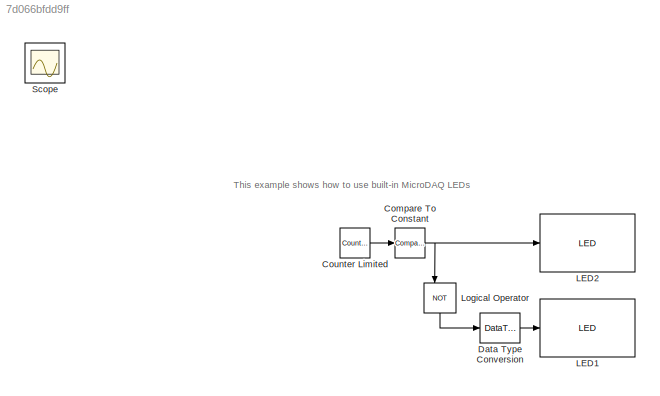
MODEL slx_7d066bfdd9ff
KIND model
CONFIG AbsTol = auto
CONFIG EnableMultiTasking = off
CONFIG FixedStep = 0.1
CONFIG MaxStep = auto
CONFIG MinStep = auto
CONFIG RelTol = 1e-3
CONFIG SampleTimeConstraint = Unconstrained
CONFIG SolverName = FixedStepDiscrete
CONFIG StartTime = 0.0
CONFIG StopTime = 10.0
BLOCK [Reference] Compare To Constant  REF=simulink/Logic and Bit
Operations/Compare
To Constant
  SourceBlock = simulink/Logic and Bit\nOperations/Compare\nTo Constant
  SourceType = Compare To Constant
BLOCK [Reference] Counter Limited  REF=simulink/Sources/Counter
Limited
  AttributesFormatString = Upper limit: %<uplimit>
  SourceBlock = simulink/Sources/Counter\nLimited
  SourceType = Counter Limited
BLOCK [DataTypeConversion] Data Type Conversion
  RndMeth = Floor
  SaturateOnIntegerOverflow = off
BLOCK [Reference] LED1  REF=microdaq_lib/Utilities/LED  (lib defined in slx_912f07ce28e3)
  SourceBlock = microdaq_lib/Utilities/LED
  SourceProductName = MicroDAQ
  SourceType = LED
BLOCK [Reference] LED2  REF=microdaq_lib/Utilities/LED  (lib defined in slx_912f07ce28e3)
  SourceBlock = microdaq_lib/Utilities/LED
  SourceProductName = MicroDAQ
  SourceType = LED
BLOCK [Logic] Logical Operator
  AllPortsSameDT = off
  NameLocation = right
  Operator = NOT
  OutDataTypeStr = boolean
BLOCK [Scope] Scope
  Floating = off
  IOType = viewer
  NumInputPorts = 1
  ScopeSpecificationString = C++SS(StrPVP('Open','off'),StrPVP('TimeRange','auto'),StrPVP('TickLabels','OneTimeTick'),StrPVP('ShowLegends','off'),StrPVP('LimitDataPoints','on'),StrPVP('MaxDataPoints','7500'),StrPVP('SaveToWorkspace','off'),StrPVP('SaveName','ScopeData'),StrPVP('YMin','-10'),StrPVP('YMax','10'),StrPVP('BlockParamSampleInput','off'),StrPVP('ZoomMode','on'),StrPVP('Grid','on'),StrPVP('DataFormat','Array'),StrPVP...<+120ch>
ANNOTATION (root): This example shows how to use built-in MicroDAQ LEDs
NET Compare To Constant:1 -> LED2:1, Logical Operator:1
LINE Counter Limited:1 -> Compare To Constant:1
LINE Data Type Conversion:1 -> LED1:1
LINE Logical Operator:1 -> Data Type Conversion:1
note: NET lines group one-source signal fan-out (src -> all destinations, sorted); 1:1 wires keep LINE
